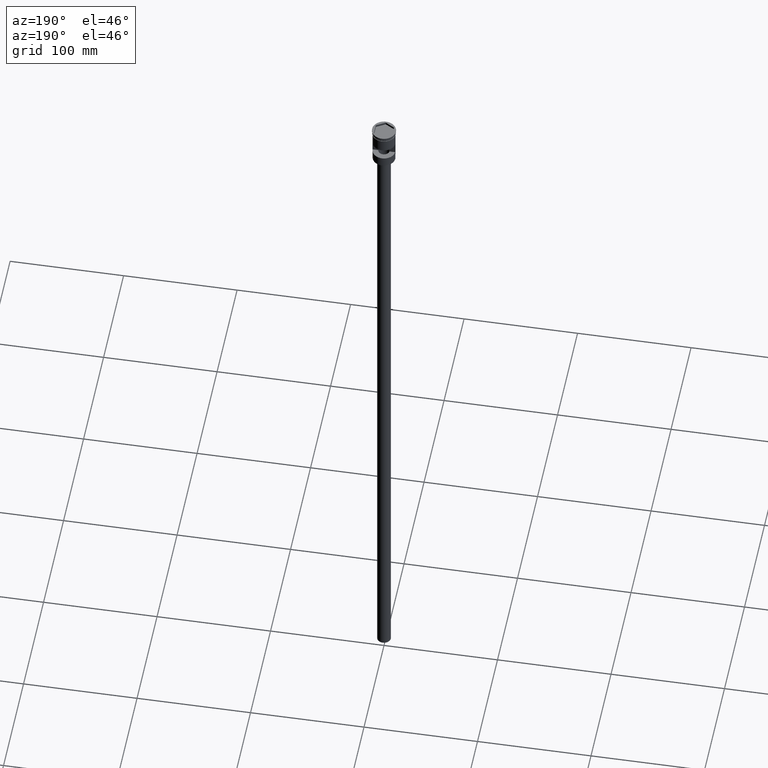
[diagram: clean part render]
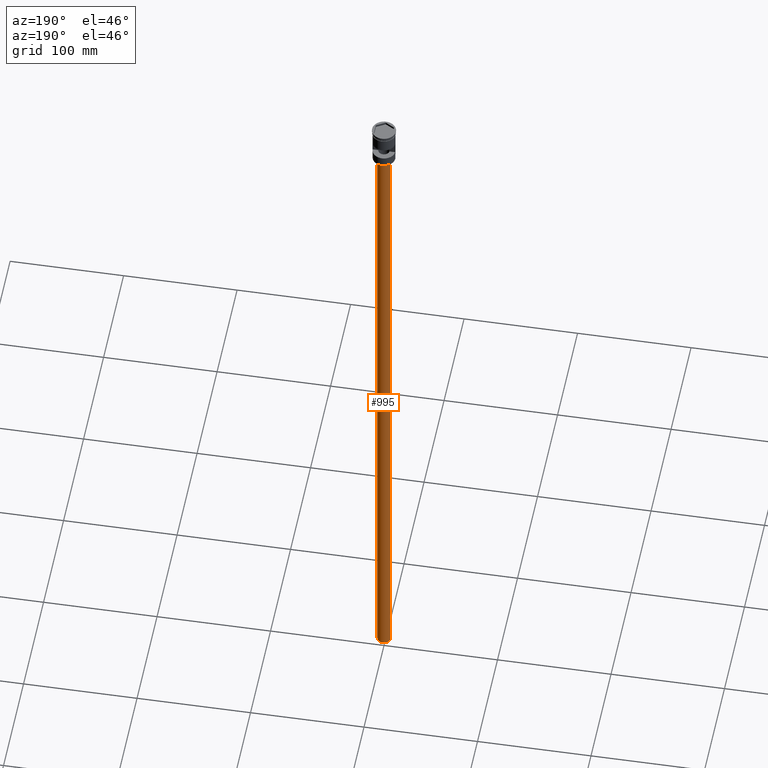
[diagram: same view with one face highlighted and labeled with its STEP entity id]
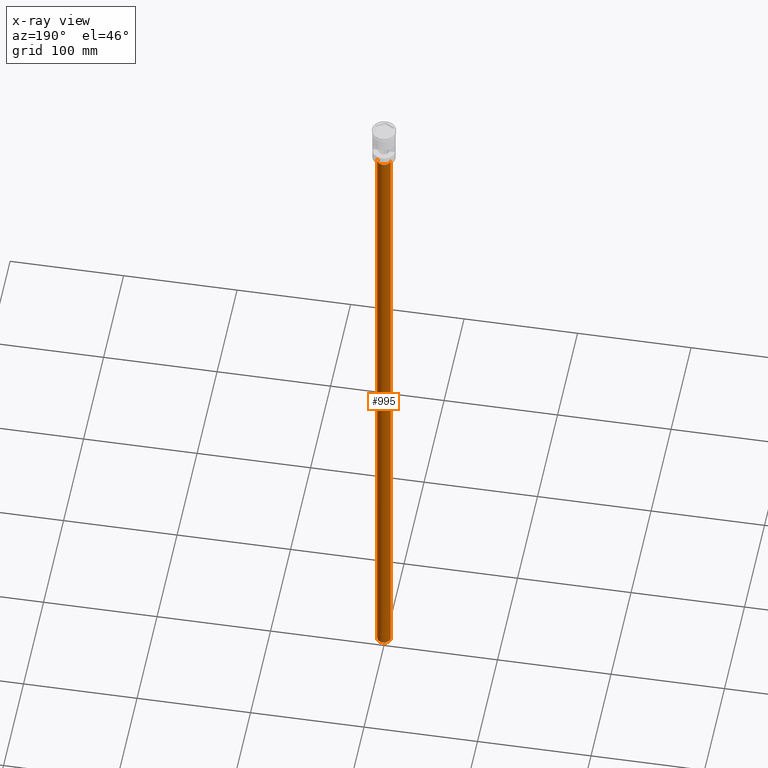
[diagram: x-ray of the same camera — body ghosted, the highlighted face saturated]
A machine part, auxiliary view. The second image highlights one B-rep face of the part: STEP entity #995.
The next image is the same camera in x-ray: the body ghosted, the highlighted face saturated — about 0% of this face is hidden behind the body in this view.
In plain terms, the highlighted cylindrical surface (edge-blend (fillet) strip) has radius 6 mm, axis along (-0, -0, 1).
Its self-contained STEP definition (entity closure, byte-faithful):
#17 = VECTOR ( 'NONE', #1591, 1000.000000000000000 ) ;
#27 = DIRECTION ( 'NONE',  ( -0.000000000000000000, -0.000000000000000000, 1.000000000000000000 ) ) ;
#85 = EDGE_LOOP ( 'NONE', ( #116, #1124, #1189, #1545 ) ) ;
#116 = ORIENTED_EDGE ( 'NONE', *, *, #223, .F. ) ;
#150 = CARTESIAN_POINT ( 'NONE',  ( 0.000000000000000000, 0.000000000000000000, -634.0000000000000000 ) ) ;
#166 = DIRECTION ( 'NONE',  ( 0.000000000000000000, 0.000000000000000000, -1.000000000000000000 ) ) ;
#184 = EDGE_CURVE ( 'NONE', #1084, #873, #413, .T. ) ;
#223 = EDGE_CURVE ( 'NONE', #1084, #225, #1428, .T. ) ;
#225 = VERTEX_POINT ( 'NONE', #880 ) ;
#259 = AXIS2_PLACEMENT_3D ( 'NONE', #1145, #919, #315 ) ;
#289 = CARTESIAN_POINT ( 'NONE',  ( -6.000000000000000888, 7.347880794884120722E-16, -634.0000000000000000 ) ) ;
#315 = DIRECTION ( 'NONE',  ( -1.000000000000000000, 0.000000000000000000, 0.000000000000000000 ) ) ;
#396 = DIRECTION ( 'NONE',  ( -1.000000000000000000, 0.000000000000000000, 0.000000000000000000 ) ) ;
#413 = LINE ( 'NONE', #289, #1225 ) ;
#414 = CARTESIAN_POINT ( 'NONE',  ( 6.000000000000000888, 0.000000000000000000, -37.00000000000000000 ) ) ;
#499 = CARTESIAN_POINT ( 'NONE',  ( -6.000000000000000888, 7.347880794884120722E-16, -37.00000000000000000 ) ) ;
#571 = EDGE_CURVE ( 'NONE', #225, #1441, #595, .T. ) ;
#584 = AXIS2_PLACEMENT_3D ( 'NONE', #150, #166, #396 ) ;
#595 = LINE ( 'NONE', #1090, #17 ) ;
#650 = CARTESIAN_POINT ( 'NONE',  ( 0.000000000000000000, 0.000000000000000000, -634.0000000000000000 ) ) ;
#873 = VERTEX_POINT ( 'NONE', #499 ) ;
#880 = CARTESIAN_POINT ( 'NONE',  ( 6.000000000000000888, 0.000000000000000000, -634.0000000000000000 ) ) ;
#891 = CARTESIAN_POINT ( 'NONE',  ( -6.000000000000000888, 7.347880794884120722E-16, -634.0000000000000000 ) ) ;
#919 = DIRECTION ( 'NONE',  ( 0.000000000000000000, 0.000000000000000000, -1.000000000000000000 ) ) ;
#995 = ADVANCED_FACE ( 'NONE', ( #1274 ), #1010, .T. ) ;
#1002 = EDGE_CURVE ( 'NONE', #873, #1441, #1433, .T. ) ;
#1010 = CYLINDRICAL_SURFACE ( 'NONE', #1328, 6.000000000000000888 ) ;
#1084 = VERTEX_POINT ( 'NONE', #891 ) ;
#1090 = CARTESIAN_POINT ( 'NONE',  ( 6.000000000000000888, 0.000000000000000000, -634.0000000000000000 ) ) ;
#1124 = ORIENTED_EDGE ( 'NONE', *, *, #184, .T. ) ;
#1145 = CARTESIAN_POINT ( 'NONE',  ( 0.000000000000000000, 0.000000000000000000, -37.00000000000000000 ) ) ;
#1189 = ORIENTED_EDGE ( 'NONE', *, *, #1002, .T. ) ;
#1225 = VECTOR ( 'NONE', #27, 1000.000000000000000 ) ;
#1274 = FACE_OUTER_BOUND ( 'NONE', #85, .T. ) ;
#1281 = DIRECTION ( 'NONE',  ( 1.000000000000000000, 0.000000000000000000, 0.000000000000000000 ) ) ;
#1328 = AXIS2_PLACEMENT_3D ( 'NONE', #650, #1414, #1281 ) ;
#1414 = DIRECTION ( 'NONE',  ( -0.000000000000000000, -0.000000000000000000, 1.000000000000000000 ) ) ;
#1428 = CIRCLE ( 'NONE', #584, 6.000000000000000888 ) ;
#1433 = CIRCLE ( 'NONE', #259, 6.000000000000000888 ) ;
#1441 = VERTEX_POINT ( 'NONE', #414 ) ;
#1545 = ORIENTED_EDGE ( 'NONE', *, *, #571, .F. ) ;
#1591 = DIRECTION ( 'NONE',  ( -0.000000000000000000, -0.000000000000000000, 1.000000000000000000 ) ) ;